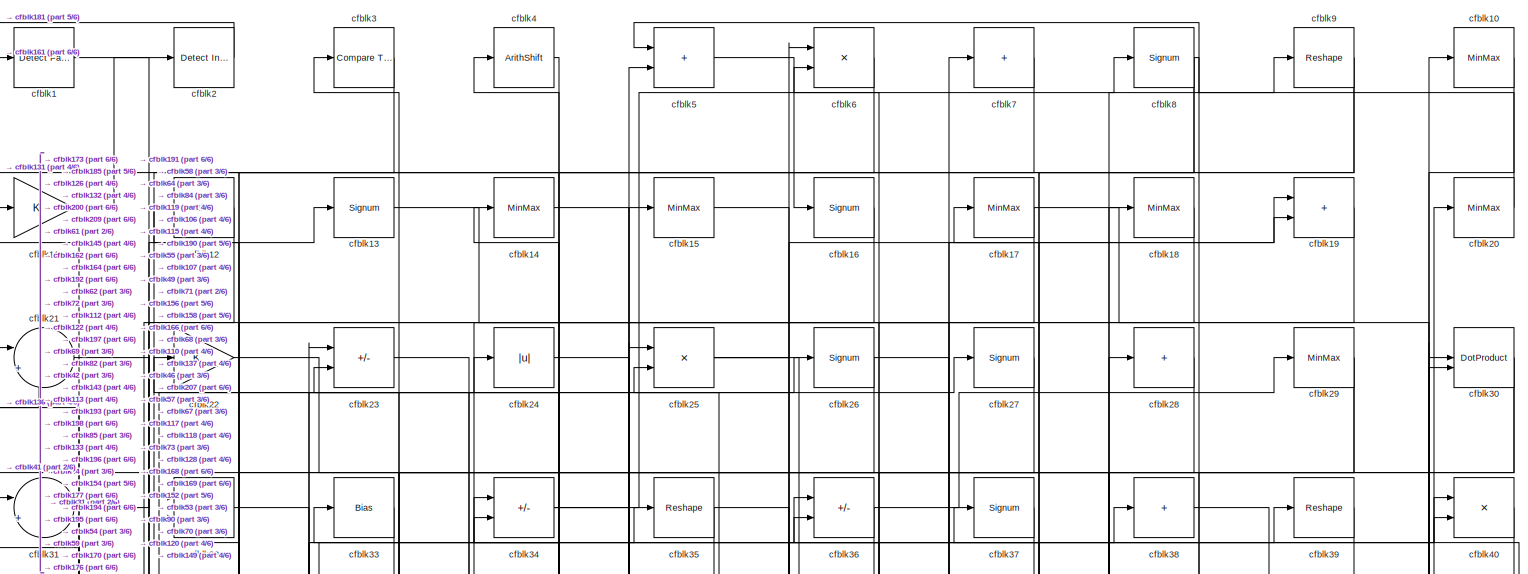
[diagram: root canvas - part 1/6, full width, top band]
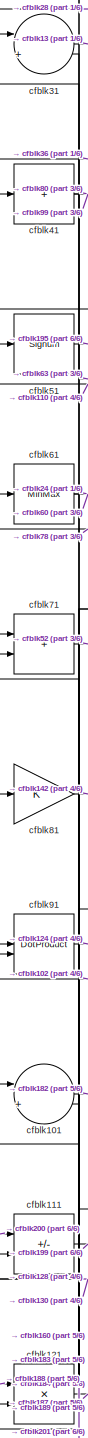
[diagram: root canvas - part 2/6, middle left region]
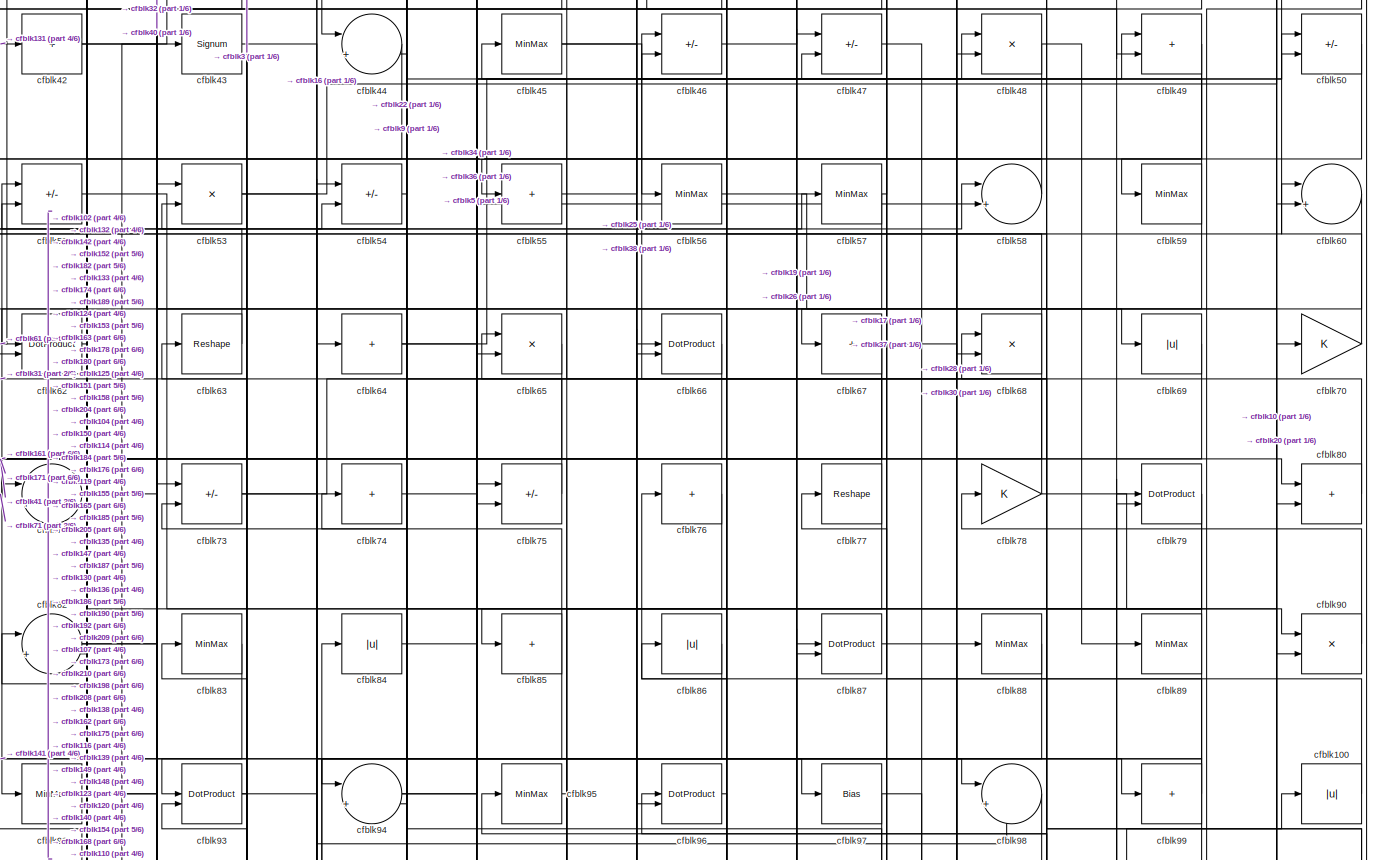
[diagram: root canvas - part 3/6, full width, middle band]
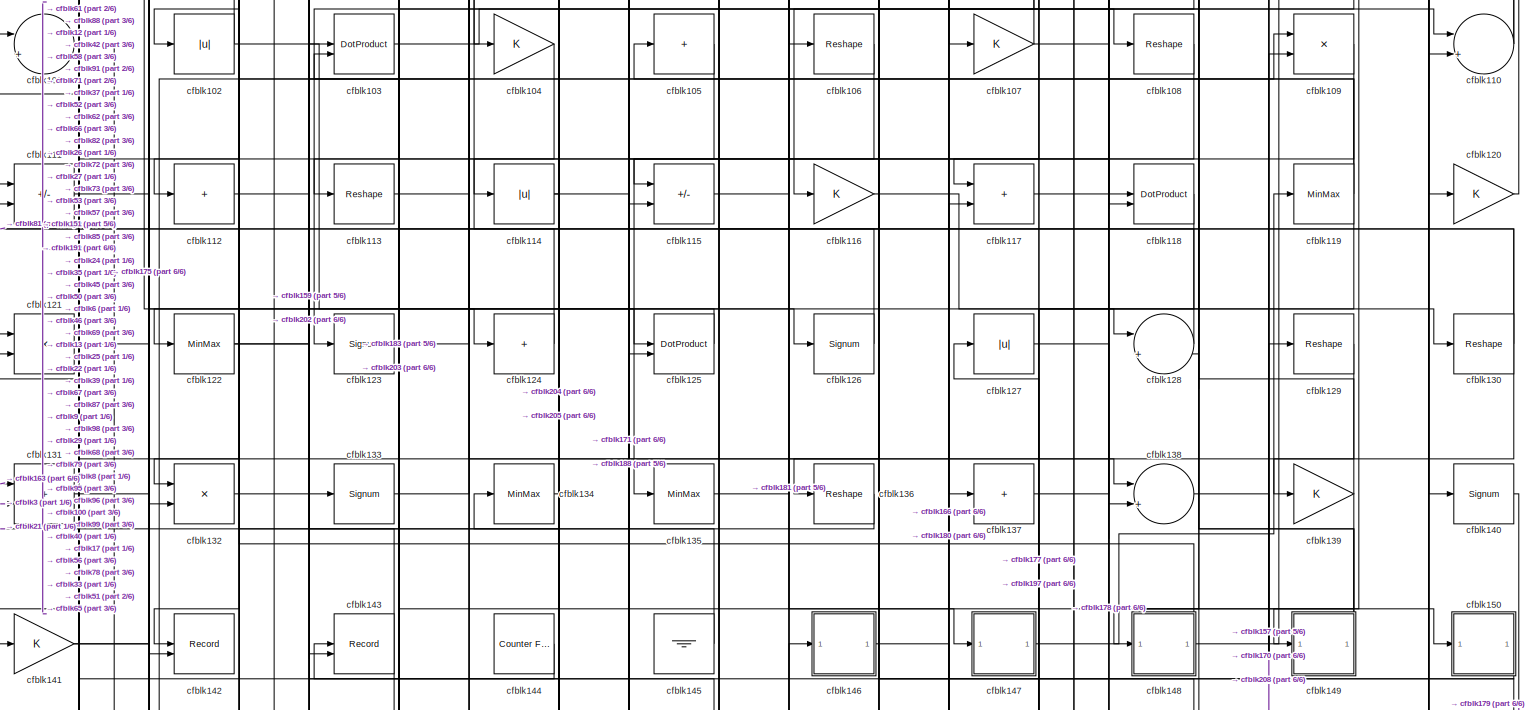
[diagram: root canvas - part 4/6, full width, middle band]
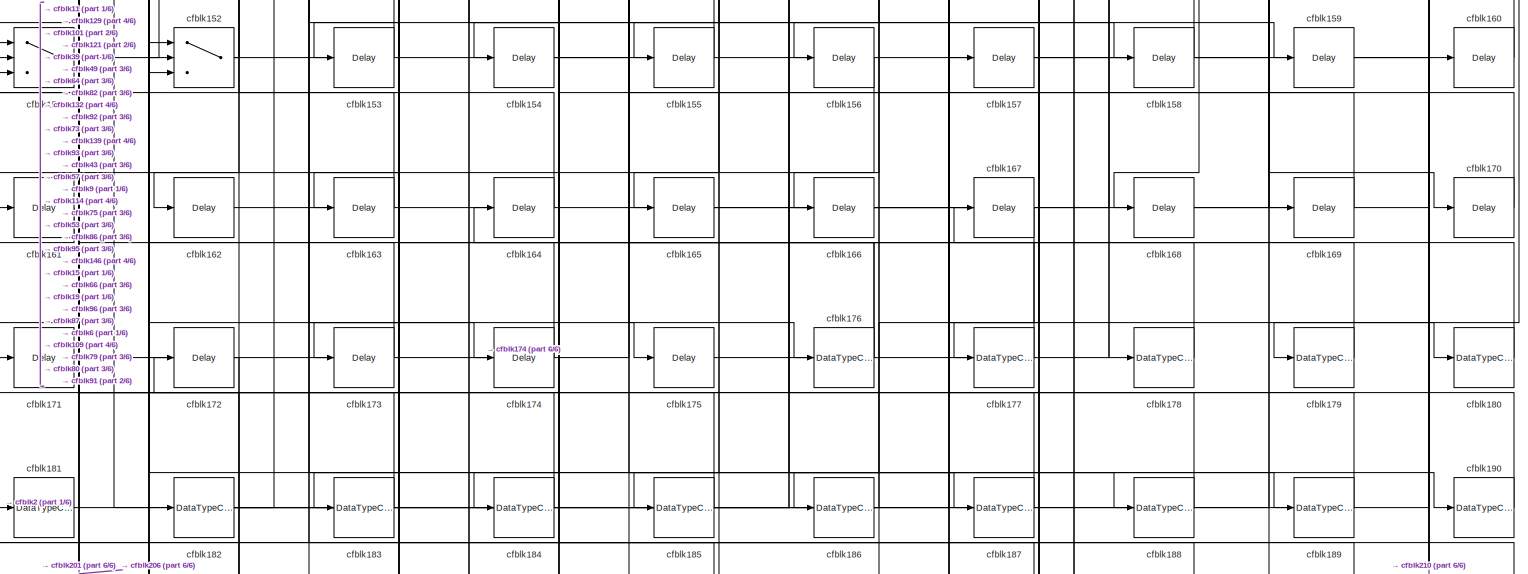
[diagram: root canvas - part 5/6, full width, bottom band]
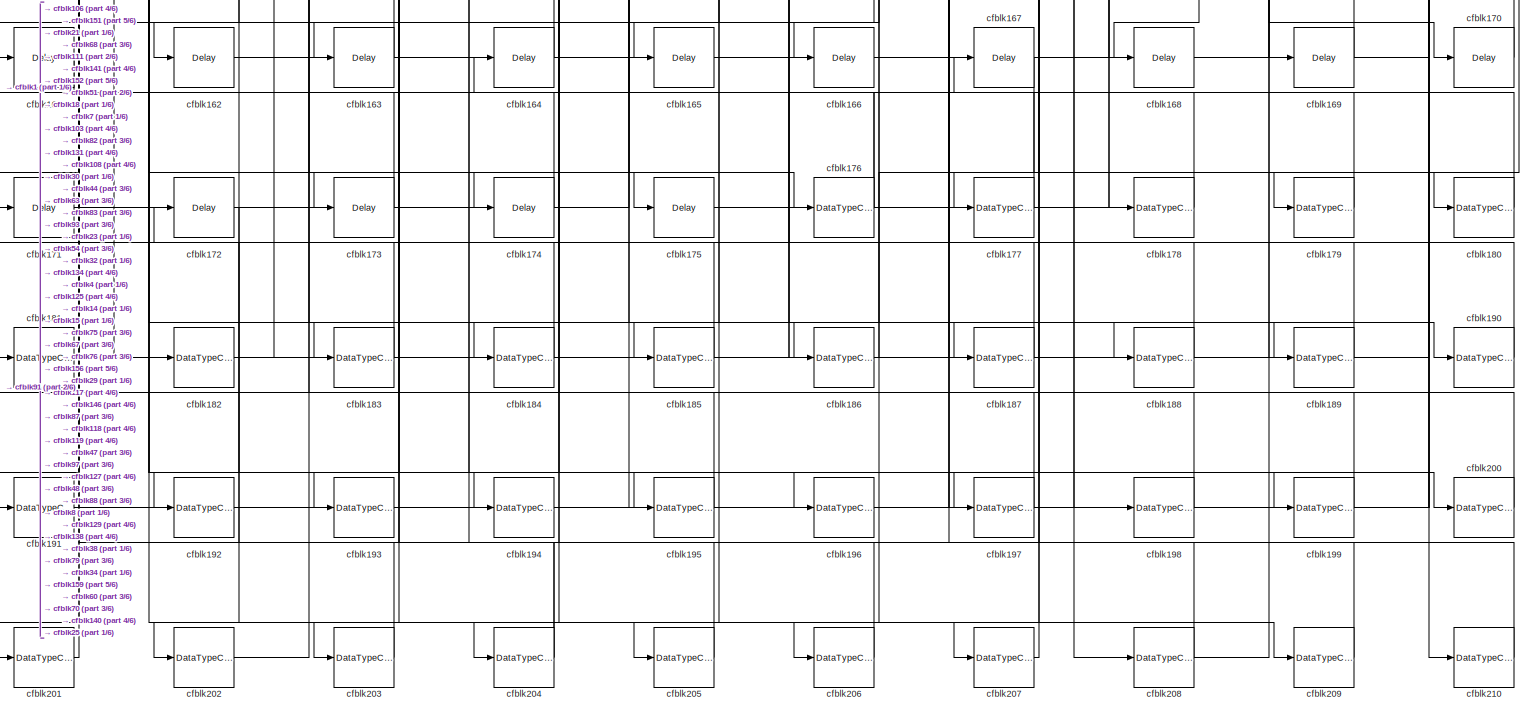
[diagram: root canvas - part 6/6, full width, bottom band]
MODEL slx_86f2b95ba22d
KIND model
CONFIG AbsTol = auto
CONFIG EnableMultiTasking = off
CONFIG FixedStep = auto
CONFIG MaxStep = auto
CONFIG MinStep = auto
CONFIG RelTol = 1e-3
CONFIG SampleTimeConstraint = Unconstrained
CONFIG SolverName = VariableStepAuto
CONFIG StartTime = 0.0
CONFIG StopTime = 10.0
BLOCK [Reference] cfblk1  REF=hdlsllib/Logic and Bit
Operations/Detect Fall
Nonpositive
  SourceBlock = hdlsllib/Logic and Bit\nOperations/Detect Fall\nNonpositive
  SourceType = Detect Fall Nonpositive
BLOCK [MinMax] cfblk10
BLOCK [Abs] cfblk100
  SaturateOnIntegerOverflow = off
BLOCK [Sum] cfblk101
  Inputs = |++
BLOCK [Abs] cfblk102
  SaturateOnIntegerOverflow = off
BLOCK [DotProduct] cfblk103
  OutDataTypeStr = Inherit: Inherit via internal rule
BLOCK [Gain] cfblk104
BLOCK [Sum] cfblk105
  IconShape = rectangular
  Inputs = +
BLOCK [Reshape] cfblk106
BLOCK [Gain] cfblk107
BLOCK [Reshape] cfblk108
BLOCK [Product] cfblk109
  Inputs = */
  RndMeth = Zero
  SaturateOnIntegerOverflow = on
BLOCK [Gain] cfblk11
BLOCK [Sum] cfblk110
  Inputs = |++
BLOCK [Sum] cfblk111
  IconShape = rectangular
  Inputs = +-
BLOCK [Sum] cfblk112
  IconShape = rectangular
  Inputs = +
BLOCK [Reshape] cfblk113
BLOCK [Abs] cfblk114
  SaturateOnIntegerOverflow = off
BLOCK [Sum] cfblk115
  IconShape = rectangular
  Inputs = +-
BLOCK [Gain] cfblk116
BLOCK [Sum] cfblk117
  IconShape = rectangular
BLOCK [DotProduct] cfblk118
  OutDataTypeStr = Inherit: Inherit via internal rule
BLOCK [MinMax] cfblk119
BLOCK [Bias] cfblk12
  Bias = 0.0
  SaturateOnIntegerOverflow = off
BLOCK [Gain] cfblk120
BLOCK [Product] cfblk121
  Inputs = */
  RndMeth = Zero
  SaturateOnIntegerOverflow = on
BLOCK [MinMax] cfblk122
BLOCK [Signum] cfblk123
BLOCK [Sum] cfblk124
  IconShape = rectangular
  Inputs = +
BLOCK [DotProduct] cfblk125
  OutDataTypeStr = Inherit: Inherit via internal rule
BLOCK [Signum] cfblk126
BLOCK [Abs] cfblk127
  SaturateOnIntegerOverflow = off
BLOCK [Sum] cfblk128
  Inputs = |++
BLOCK [Reshape] cfblk129
BLOCK [Signum] cfblk13
BLOCK [Reshape] cfblk130
BLOCK [Sum] cfblk131
  IconShape = rectangular
BLOCK [Product] cfblk132
  Inputs = */
  RndMeth = Zero
  SaturateOnIntegerOverflow = on
BLOCK [Signum] cfblk133
BLOCK [MinMax] cfblk134
BLOCK [MinMax] cfblk135
BLOCK [Reshape] cfblk136
BLOCK [Sum] cfblk137
  IconShape = rectangular
  Inputs = +
BLOCK [Sum] cfblk138
  Inputs = |++
BLOCK [Gain] cfblk139
BLOCK [MinMax] cfblk14
BLOCK [Signum] cfblk140
BLOCK [Gain] cfblk141
BLOCK [Record] cfblk142
  CompatibilityTag = XY
  FileSettingsInternal = {"entries":[{"content":{"excelSettings":{"content":{},"type":"Streamout.ExcelSettings"}},"type":"Streamout.FileSettingStorage","uuid":""}],"packageUris":["http:\/\/schema.mathworks.com\/mf0\/streamout_blocks\/R2020a"],"version":"1.0"}
  Layout = [1 1]
  SignalsInternal = {"entries":[{"content":{"signals":[{"content":{"blockPath":[],"dimensions":[1],"domain":"","lineColor":"#a2142f","plots":[1],"port":1,"signalID":5086,"signalName":"XY Graph:1"},"type":"RecordBlkView.Signal","uuid":""},{"content":{"blockPath":[],"dimensions":[1],"domain":"","lineColor":"#139fff","plots":[1],"port":2,"signalID":5089,"signalName":"XY Graph:2"},"type":"RecordBlkView.Signal","uuid":""}...<+146ch>
  VisualizationBindings = {"xyplotplugin":{"info":[{"series":[{"bindingParametersList":[{"parameter":"X-Axis","signalID":5086,"signalName":"XY Graph:1"},{"parameter":"Y-Axis","signalID":5089,"signalName":"XY Graph:2"}],"seriesID":15448}],"subplotID":1}]}}
  st = -1
BLOCK [Record] cfblk143
  CompatibilityTag = XY
  FileSettingsInternal = {"entries":[{"content":{"excelSettings":{"content":{},"type":"Streamout.ExcelSettings"}},"type":"Streamout.FileSettingStorage","uuid":""}],"packageUris":["http:\/\/schema.mathworks.com\/mf0\/streamout_blocks\/R2020a"],"version":"1.0"}
  Layout = [1 1]
  SignalsInternal = {"entries":[{"content":{"signals":[{"content":{"blockPath":[],"dimensions":[1],"domain":"","lineColor":"#a2142f","plots":[1],"port":1,"signalID":5094,"signalName":"XY Graph:1"},"type":"RecordBlkView.Signal","uuid":""},{"content":{"blockPath":[],"dimensions":[1],"domain":"","lineColor":"#139fff","plots":[1],"port":2,"signalID":5097,"signalName":"XY Graph:2"},"type":"RecordBlkView.Signal","uuid":""}...<+146ch>
  VisualizationBindings = {"xyplotplugin":{"info":[{"series":[{"bindingParametersList":[{"parameter":"X-Axis","signalID":5094,"signalName":"XY Graph:1"},{"parameter":"Y-Axis","signalID":5097,"signalName":"XY Graph:2"}],"seriesID":38158}],"subplotID":1}]}}
  st = -1
BLOCK [Reference] cfblk144  REF=hdlsllib/Sources/Counter
Free-Running
  SourceBlock = hdlsllib/Sources/Counter\nFree-Running
  SourceType = Counter Free-Running
BLOCK [Ground] cfblk145
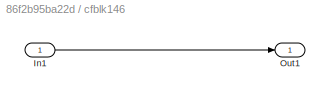
BLOCK [SubSystem] cfblk146
  LibrarySourceBlock = hdlsllib/Ports &\nSubsystems/Subsystem
BLOCK [Inport] cfblk146/In1
BLOCK [Outport] cfblk146/Out1
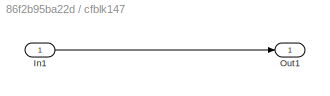
BLOCK [SubSystem] cfblk147
  LibrarySourceBlock = hdlsllib/Ports &\nSubsystems/Subsystem
BLOCK [Inport] cfblk147/In1
BLOCK [Outport] cfblk147/Out1
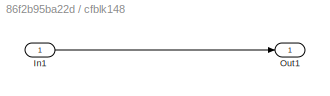
BLOCK [SubSystem] cfblk148
  LibrarySourceBlock = hdlsllib/Ports &\nSubsystems/Subsystem
BLOCK [Inport] cfblk148/In1
BLOCK [Outport] cfblk148/Out1
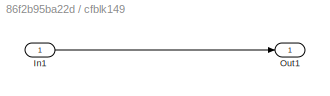
BLOCK [SubSystem] cfblk149
  LibrarySourceBlock = hdlsllib/Ports &\nSubsystems/Subsystem
BLOCK [Inport] cfblk149/In1
BLOCK [Outport] cfblk149/Out1
BLOCK [MinMax] cfblk15
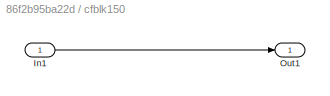
BLOCK [SubSystem] cfblk150
  LibrarySourceBlock = hdlsllib/Ports &\nSubsystems/Subsystem
BLOCK [Inport] cfblk150/In1
BLOCK [Outport] cfblk150/Out1
BLOCK [Switch] cfblk151
  InputSameDT = off
  SaturateOnIntegerOverflow = off
BLOCK [Switch] cfblk152
  InputSameDT = off
  SaturateOnIntegerOverflow = off
BLOCK [Delay] cfblk153
  InputPortMap = u0
  SampleTime = 1
BLOCK [Delay] cfblk154
  InputPortMap = u0
  SampleTime = 1
BLOCK [Delay] cfblk155
  InputPortMap = u0
  SampleTime = 1
BLOCK [Delay] cfblk156
  InputPortMap = u0
  SampleTime = 1
BLOCK [Delay] cfblk157
  InputPortMap = u0
  SampleTime = 1
BLOCK [Delay] cfblk158
  InputPortMap = u0
  SampleTime = 1
BLOCK [Delay] cfblk159
  InputPortMap = u0
  SampleTime = 1
BLOCK [Signum] cfblk16
BLOCK [Delay] cfblk160
  InputPortMap = u0
  SampleTime = 1
BLOCK [Delay] cfblk161
  InputPortMap = u0
  SampleTime = 1
BLOCK [Delay] cfblk162
  InputPortMap = u0
  SampleTime = 1
BLOCK [Delay] cfblk163
  InputPortMap = u0
  SampleTime = 1
BLOCK [Delay] cfblk164
  InputPortMap = u0
  SampleTime = 1
BLOCK [Delay] cfblk165
  InputPortMap = u0
  SampleTime = 1
BLOCK [Delay] cfblk166
  InputPortMap = u0
  SampleTime = 1
BLOCK [Delay] cfblk167
  InputPortMap = u0
  SampleTime = 1
BLOCK [Delay] cfblk168
  InputPortMap = u0
  SampleTime = 1
BLOCK [Delay] cfblk169
  InputPortMap = u0
  SampleTime = 1
BLOCK [MinMax] cfblk17
BLOCK [Delay] cfblk170
  InputPortMap = u0
  SampleTime = 1
BLOCK [Delay] cfblk171
  InputPortMap = u0
  SampleTime = 1
BLOCK [Delay] cfblk172
  InputPortMap = u0
  SampleTime = 1
BLOCK [Delay] cfblk173
  InputPortMap = u0
  SampleTime = 1
BLOCK [Delay] cfblk174
  InputPortMap = u0
  SampleTime = 1
BLOCK [Delay] cfblk175
  InputPortMap = u0
  SampleTime = 1
BLOCK [DataTypeConversion] cfblk176
  RndMeth = Floor
  SaturateOnIntegerOverflow = off
BLOCK [DataTypeConversion] cfblk177
  OutDataTypeStr = uint8
  RndMeth = Floor
  SaturateOnIntegerOverflow = off
BLOCK [DataTypeConversion] cfblk178
  OutDataTypeStr = uint8
  RndMeth = Floor
  SaturateOnIntegerOverflow = off
BLOCK [DataTypeConversion] cfblk179
  OutDataTypeStr = uint8
  RndMeth = Floor
  SaturateOnIntegerOverflow = off
BLOCK [MinMax] cfblk18
BLOCK [DataTypeConversion] cfblk180
  OutDataTypeStr = uint8
  RndMeth = Floor
  SaturateOnIntegerOverflow = off
BLOCK [DataTypeConversion] cfblk181
  OutDataTypeStr = uint8
  RndMeth = Floor
  SaturateOnIntegerOverflow = off
BLOCK [DataTypeConversion] cfblk182
  RndMeth = Floor
  SaturateOnIntegerOverflow = off
BLOCK [DataTypeConversion] cfblk183
  OutDataTypeStr = uint8
  RndMeth = Floor
  SaturateOnIntegerOverflow = off
BLOCK [DataTypeConversion] cfblk184
  OutDataTypeStr = uint8
  RndMeth = Floor
  SaturateOnIntegerOverflow = off
BLOCK [DataTypeConversion] cfblk185
  RndMeth = Floor
  SaturateOnIntegerOverflow = off
BLOCK [DataTypeConversion] cfblk186
  OutDataTypeStr = uint8
  RndMeth = Floor
  SaturateOnIntegerOverflow = off
BLOCK [DataTypeConversion] cfblk187
  OutDataTypeStr = uint8
  RndMeth = Floor
  SaturateOnIntegerOverflow = off
BLOCK [DataTypeConversion] cfblk188
  OutDataTypeStr = uint8
  RndMeth = Floor
  SaturateOnIntegerOverflow = off
BLOCK [DataTypeConversion] cfblk189
  OutDataTypeStr = uint8
  RndMeth = Floor
  SaturateOnIntegerOverflow = off
BLOCK [Sum] cfblk19
  IconShape = rectangular
BLOCK [DataTypeConversion] cfblk190
  OutDataTypeStr = uint8
  RndMeth = Floor
  SaturateOnIntegerOverflow = off
BLOCK [DataTypeConversion] cfblk191
  OutDataTypeStr = uint8
  RndMeth = Floor
  SaturateOnIntegerOverflow = off
BLOCK [DataTypeConversion] cfblk192
  RndMeth = Floor
  SaturateOnIntegerOverflow = off
BLOCK [DataTypeConversion] cfblk193
  OutDataTypeStr = uint8
  RndMeth = Floor
  SaturateOnIntegerOverflow = off
BLOCK [DataTypeConversion] cfblk194
  OutDataTypeStr = uint8
  RndMeth = Floor
  SaturateOnIntegerOverflow = off
BLOCK [DataTypeConversion] cfblk195
  OutDataTypeStr = uint8
  RndMeth = Floor
  SaturateOnIntegerOverflow = off
BLOCK [DataTypeConversion] cfblk196
  OutDataTypeStr = uint8
  RndMeth = Floor
  SaturateOnIntegerOverflow = off
BLOCK [DataTypeConversion] cfblk197
  OutDataTypeStr = uint8
  RndMeth = Floor
  SaturateOnIntegerOverflow = off
BLOCK [DataTypeConversion] cfblk198
  OutDataTypeStr = uint8
  RndMeth = Floor
  SaturateOnIntegerOverflow = off
BLOCK [DataTypeConversion] cfblk199
  OutDataTypeStr = uint8
  RndMeth = Floor
  SaturateOnIntegerOverflow = off
BLOCK [Reference] cfblk2  REF=simulink/Logic and Bit
Operations/Detect
Increase
  LibrarySourceBlock = hdlsllib/Logic and Bit\nOperations/Detect\nIncrease
  SourceBlock = simulink/Logic and Bit\nOperations/Detect\nIncrease
  SourceType = Detect Increase
BLOCK [MinMax] cfblk20
BLOCK [DataTypeConversion] cfblk200
  OutDataTypeStr = uint8
  RndMeth = Floor
  SaturateOnIntegerOverflow = off
BLOCK [DataTypeConversion] cfblk201
  OutDataTypeStr = uint8
  RndMeth = Floor
  SaturateOnIntegerOverflow = off
BLOCK [DataTypeConversion] cfblk202
  OutDataTypeStr = uint8
  RndMeth = Floor
  SaturateOnIntegerOverflow = off
BLOCK [DataTypeConversion] cfblk203
  OutDataTypeStr = uint8
  RndMeth = Floor
  SaturateOnIntegerOverflow = off
BLOCK [DataTypeConversion] cfblk204
  RndMeth = Floor
  SaturateOnIntegerOverflow = off
BLOCK [DataTypeConversion] cfblk205
  OutDataTypeStr = uint8
  RndMeth = Floor
  SaturateOnIntegerOverflow = off
BLOCK [DataTypeConversion] cfblk206
  OutDataTypeStr = uint8
  RndMeth = Floor
  SaturateOnIntegerOverflow = off
BLOCK [DataTypeConversion] cfblk207
  OutDataTypeStr = uint8
  RndMeth = Floor
  SaturateOnIntegerOverflow = off
BLOCK [DataTypeConversion] cfblk208
  RndMeth = Floor
  SaturateOnIntegerOverflow = off
BLOCK [DataTypeConversion] cfblk209
  OutDataTypeStr = uint8
  RndMeth = Floor
  SaturateOnIntegerOverflow = off
BLOCK [Sum] cfblk21
  Inputs = |++
BLOCK [DataTypeConversion] cfblk210
  OutDataTypeStr = uint8
  RndMeth = Floor
  SaturateOnIntegerOverflow = off
BLOCK [Gain] cfblk22
BLOCK [Sum] cfblk23
  IconShape = rectangular
  Inputs = +-
BLOCK [Abs] cfblk24
  SaturateOnIntegerOverflow = off
BLOCK [Product] cfblk25
  Inputs = */
  RndMeth = Zero
  SaturateOnIntegerOverflow = on
BLOCK [Signum] cfblk26
BLOCK [Signum] cfblk27
BLOCK [Sum] cfblk28
  IconShape = rectangular
  Inputs = +
BLOCK [MinMax] cfblk29
BLOCK [Reference] cfblk3  REF=hdlsllib/Logic and Bit
Operations/Compare
To Constant
  SourceBlock = hdlsllib/Logic and Bit\nOperations/Compare\nTo Constant
  SourceType = Compare To Constant
BLOCK [DotProduct] cfblk30
  OutDataTypeStr = Inherit: Inherit via internal rule
BLOCK [Sum] cfblk31
  Inputs = |++
BLOCK [Product] cfblk32
  Inputs = */
  RndMeth = Zero
  SaturateOnIntegerOverflow = on
BLOCK [Bias] cfblk33
  Bias = 0.0
  SaturateOnIntegerOverflow = off
BLOCK [Sum] cfblk34
  IconShape = rectangular
  Inputs = +-
BLOCK [Reshape] cfblk35
BLOCK [Sum] cfblk36
  IconShape = rectangular
  Inputs = +-
BLOCK [Signum] cfblk37
BLOCK [Sum] cfblk38
  IconShape = rectangular
  Inputs = +
BLOCK [Reshape] cfblk39
BLOCK [ArithShift] cfblk4
  BitShiftNumber = 8
  InputPortMap = u0
BLOCK [Product] cfblk40
  Inputs = */
  RndMeth = Zero
  SaturateOnIntegerOverflow = on
BLOCK [Sum] cfblk41
  IconShape = rectangular
  Inputs = +
BLOCK [Sum] cfblk42
  IconShape = rectangular
  Inputs = +
BLOCK [Signum] cfblk43
BLOCK [Sum] cfblk44
  Inputs = |++
BLOCK [MinMax] cfblk45
BLOCK [Sum] cfblk46
  IconShape = rectangular
  Inputs = +-
BLOCK [Sum] cfblk47
  IconShape = rectangular
  Inputs = +-
BLOCK [Product] cfblk48
  Inputs = */
  RndMeth = Zero
  SaturateOnIntegerOverflow = on
BLOCK [Sum] cfblk49
  IconShape = rectangular
BLOCK [Sum] cfblk5
  IconShape = rectangular
BLOCK [Sum] cfblk50
  IconShape = rectangular
  Inputs = +-
BLOCK [Signum] cfblk51
BLOCK [Sum] cfblk52
  IconShape = rectangular
  Inputs = +-
BLOCK [Product] cfblk53
  Inputs = */
  RndMeth = Zero
  SaturateOnIntegerOverflow = on
BLOCK [Sum] cfblk54
  IconShape = rectangular
  Inputs = +-
BLOCK [Sum] cfblk55
  IconShape = rectangular
  Inputs = +
BLOCK [MinMax] cfblk56
BLOCK [MinMax] cfblk57
BLOCK [Sum] cfblk58
  Inputs = |++
BLOCK [MinMax] cfblk59
BLOCK [Product] cfblk6
  Inputs = */
  RndMeth = Zero
  SaturateOnIntegerOverflow = on
BLOCK [Sum] cfblk60
  Inputs = |++
BLOCK [MinMax] cfblk61
BLOCK [DotProduct] cfblk62
  OutDataTypeStr = Inherit: Inherit via internal rule
BLOCK [Reshape] cfblk63
BLOCK [Sum] cfblk64
  IconShape = rectangular
  Inputs = +
BLOCK [Product] cfblk65
  Inputs = */
  RndMeth = Zero
  SaturateOnIntegerOverflow = on
BLOCK [DotProduct] cfblk66
  OutDataTypeStr = Inherit: Inherit via internal rule
BLOCK [Sum] cfblk67
  IconShape = rectangular
  Inputs = +
BLOCK [Product] cfblk68
  Inputs = */
  RndMeth = Zero
  SaturateOnIntegerOverflow = on
BLOCK [Abs] cfblk69
  SaturateOnIntegerOverflow = off
BLOCK [Sum] cfblk7
  IconShape = rectangular
  Inputs = +
BLOCK [Gain] cfblk70
BLOCK [Sum] cfblk71
  IconShape = rectangular
BLOCK [Sum] cfblk72
  Inputs = |++
BLOCK [Sum] cfblk73
  IconShape = rectangular
  Inputs = +-
BLOCK [Sum] cfblk74
  IconShape = rectangular
  Inputs = +
BLOCK [Sum] cfblk75
  IconShape = rectangular
  Inputs = +-
BLOCK [Sum] cfblk76
  IconShape = rectangular
  Inputs = +
BLOCK [Reshape] cfblk77
BLOCK [Gain] cfblk78
BLOCK [DotProduct] cfblk79
  OutDataTypeStr = Inherit: Inherit via internal rule
BLOCK [Signum] cfblk8
BLOCK [Sum] cfblk80
  IconShape = rectangular
BLOCK [Gain] cfblk81
BLOCK [Sum] cfblk82
  Inputs = |++
BLOCK [MinMax] cfblk83
BLOCK [Abs] cfblk84
  SaturateOnIntegerOverflow = off
BLOCK [Sum] cfblk85
  IconShape = rectangular
  Inputs = +
BLOCK [Abs] cfblk86
  SaturateOnIntegerOverflow = off
BLOCK [DotProduct] cfblk87
  OutDataTypeStr = Inherit: Inherit via internal rule
BLOCK [MinMax] cfblk88
BLOCK [MinMax] cfblk89
BLOCK [Reshape] cfblk9
BLOCK [Product] cfblk90
  Inputs = */
  RndMeth = Zero
  SaturateOnIntegerOverflow = on
BLOCK [DotProduct] cfblk91
  OutDataTypeStr = Inherit: Inherit via internal rule
BLOCK [MinMax] cfblk92
BLOCK [DotProduct] cfblk93
  OutDataTypeStr = Inherit: Inherit via internal rule
BLOCK [Sum] cfblk94
  Inputs = |++
BLOCK [MinMax] cfblk95
BLOCK [DotProduct] cfblk96
  OutDataTypeStr = Inherit: Inherit via internal rule
BLOCK [Bias] cfblk97
  Bias = 0.0
  SaturateOnIntegerOverflow = off
BLOCK [Sum] cfblk98
  Inputs = |++
BLOCK [Sum] cfblk99
  IconShape = rectangular
  Inputs = +
LINE cfblk100:1 -> cfblk76:1
LINE cfblk101:1 -> cfblk182:1
NET cfblk102:1 -> cfblk130:1, cfblk71:1
LINE cfblk103:1 -> cfblk108:1
LINE cfblk104:1 -> cfblk114:1
LINE cfblk105:1 -> cfblk135:1
LINE cfblk106:1 -> cfblk191:1
NET cfblk107:1 -> cfblk39:1, cfblk53:2
LINE cfblk108:1 -> cfblk203:1
LINE cfblk109:1 -> cfblk115:1
LINE cfblk10:1 -> cfblk90:2
NET cfblk110:1 -> cfblk51:1, cfblk65:1
LINE cfblk111:1 -> cfblk199:1
LINE cfblk112:1 -> cfblk26:1
LINE cfblk113:1 -> cfblk138:1
NET cfblk114:1 -> cfblk188:1, cfblk74:1
LINE cfblk115:1 -> cfblk6:1
LINE cfblk116:1 -> cfblk128:1
LINE cfblk117:1 -> cfblk29:1
LINE cfblk118:1 -> cfblk177:1
NET cfblk119:1 -> cfblk197:1, cfblk25:2, cfblk82:1
LINE cfblk11:1 -> cfblk2:1
LINE cfblk120:1 -> cfblk33:1
LINE cfblk121:1 -> cfblk187:1
NET cfblk122:1 -> cfblk109:1, cfblk35:1
LINE cfblk123:1 -> cfblk57:1
LINE cfblk124:1 -> cfblk73:2
LINE cfblk125:1 -> cfblk122:1
LINE cfblk126:1 -> cfblk105:1
LINE cfblk127:1 -> cfblk178:1
LINE cfblk128:1 -> cfblk81:1
LINE cfblk129:1 -> cfblk151:1
LINE cfblk12:1 -> cfblk126:1
NET cfblk130:1 -> cfblk139:1, cfblk46:2, cfblk61:1
LINE cfblk131:1 -> cfblk42:1
LINE cfblk132:1 -> cfblk159:1
LINE cfblk133:1 -> cfblk27:1
LINE cfblk134:1 -> cfblk204:1
LINE cfblk135:1 -> cfblk50:2
LINE cfblk136:1 -> cfblk21:2
LINE cfblk137:1 -> cfblk9:1
LINE cfblk138:1 -> cfblk170:1
NET cfblk139:1 -> cfblk183:1, cfblk68:1
LINE cfblk13:1 -> cfblk137:1
LINE cfblk140:1 -> cfblk179:1
NET cfblk141:1 -> cfblk175:1, cfblk58:1
LINE cfblk144:1 -> cfblk143:1
LINE cfblk145:1 -> cfblk12:1
LINE cfblk146/In1:1 -> cfblk146/Out1:1
LINE cfblk146:1 -> cfblk180:1
LINE cfblk147/In1:1 -> cfblk147/Out1:1
LINE cfblk147:1 -> cfblk119:1
LINE cfblk148/In1:1 -> cfblk148/Out1:1
NET cfblk148:1 -> cfblk100:1, cfblk52:2
LINE cfblk149/In1:1 -> cfblk149/Out1:1
NET cfblk149:1 -> cfblk95:1, cfblk96:1
LINE cfblk14:1 -> cfblk176:1
LINE cfblk150/In1:1 -> cfblk150/Out1:1
LINE cfblk150:1 -> cfblk84:1
LINE cfblk151:1 -> cfblk64:1
NET cfblk152:1 -> cfblk75:2, cfblk82:2
LINE cfblk153:1 -> cfblk73:1
LINE cfblk154:1 -> cfblk80:2
LINE cfblk155:1 -> cfblk53:1
LINE cfblk156:1 -> cfblk201:1
LINE cfblk157:1 -> cfblk109:2
LINE cfblk158:1 -> cfblk6:2
LINE cfblk159:1 -> cfblk210:1
LINE cfblk15:1 -> cfblk190:1
LINE cfblk160:1 -> cfblk91:2
LINE cfblk161:1 -> cfblk1:1
LINE cfblk162:1 -> cfblk48:2
LINE cfblk163:1 -> cfblk131:1
LINE cfblk164:1 -> cfblk32:2
LINE cfblk165:1 -> cfblk79:2
LINE cfblk166:1 -> cfblk117:2
LINE cfblk167:1 -> cfblk206:1
LINE cfblk168:1 -> cfblk60:2
LINE cfblk169:1 -> cfblk34:2
LINE cfblk16:1 -> cfblk44:1
LINE cfblk170:1 -> cfblk25:1
LINE cfblk171:1 -> cfblk125:2
LINE cfblk172:1 -> cfblk202:1
LINE cfblk173:1 -> cfblk21:1
LINE cfblk174:1 -> cfblk152:1
LINE cfblk175:1 -> cfblk88:1
NET cfblk176:1 -> cfblk164:1, cfblk75:1
LINE cfblk177:1 -> cfblk14:1
LINE cfblk178:1 -> cfblk83:1
LINE cfblk179:1 -> cfblk127:1
NET cfblk17:1 -> cfblk110:2, cfblk132:2
LINE cfblk180:1 -> cfblk93:2
LINE cfblk181:1 -> cfblk146:1
NET cfblk182:1 -> cfblk157:1, cfblk160:1, cfblk43:1, cfblk66:2
LINE cfblk183:1 -> cfblk101:1
LINE cfblk184:1 -> cfblk101:2
NET cfblk185:1 -> cfblk11:1, cfblk79:1
LINE cfblk186:1 -> cfblk86:1
LINE cfblk187:1 -> cfblk66:1
LINE cfblk188:1 -> cfblk121:1
LINE cfblk189:1 -> cfblk121:2
LINE cfblk18:1 -> cfblk162:1
LINE cfblk190:1 -> cfblk87:1
LINE cfblk191:1 -> cfblk15:1
NET cfblk192:1 -> cfblk70:1, cfblk87:2
LINE cfblk193:1 -> cfblk7:1
LINE cfblk194:1 -> cfblk30:2
LINE cfblk195:1 -> cfblk4:1
LINE cfblk196:1 -> cfblk30:1
LINE cfblk197:1 -> cfblk23:1
LINE cfblk198:1 -> cfblk23:2
LINE cfblk199:1 -> cfblk91:1
LINE cfblk19:1 -> cfblk156:1
LINE cfblk1:1 -> cfblk200:1
LINE cfblk200:1 -> cfblk111:1
LINE cfblk201:1 -> cfblk111:2
LINE cfblk202:1 -> cfblk103:1
LINE cfblk203:1 -> cfblk172:1
NET cfblk204:1 -> cfblk103:2, cfblk54:1
LINE cfblk205:1 -> cfblk134:1
LINE cfblk206:1 -> cfblk151:3
LINE cfblk207:1 -> cfblk167:1
NET cfblk208:1 -> cfblk129:1, cfblk63:1
LINE cfblk209:1 -> cfblk47:1
LINE cfblk20:1 -> cfblk5:1
LINE cfblk210:1 -> cfblk47:2
LINE cfblk21:1 -> cfblk209:1
LINE cfblk22:1 -> cfblk118:1
LINE cfblk23:1 -> cfblk196:1
LINE cfblk24:1 -> cfblk118:2
NET cfblk25:1 -> cfblk107:1, cfblk19:2, cfblk49:2
NET cfblk26:1 -> cfblk110:1, cfblk72:2
LINE cfblk27:1 -> cfblk113:1
LINE cfblk28:1 -> cfblk41:1
NET cfblk29:1 -> cfblk128:2, cfblk166:1
LINE cfblk2:1 -> cfblk181:1
NET cfblk30:1 -> cfblk193:1, cfblk68:2
LINE cfblk31:1 -> cfblk13:1
LINE cfblk32:1 -> cfblk69:1
LINE cfblk33:1 -> cfblk143:2
NET cfblk34:1 -> cfblk58:2, cfblk8:1
NET cfblk35:1 -> cfblk106:1, cfblk115:2
NET cfblk36:1 -> cfblk18:1, cfblk71:2
LINE cfblk37:1 -> cfblk112:1
LINE cfblk38:1 -> cfblk169:1
LINE cfblk39:1 -> cfblk152:2
LINE cfblk3:1 -> cfblk131:2
LINE cfblk40:1 -> cfblk149:1
NET cfblk41:1 -> cfblk80:1, cfblk99:1
NET cfblk42:1 -> cfblk40:1, cfblk65:2
LINE cfblk43:1 -> cfblk158:1
LINE cfblk44:1 -> cfblk163:1
NET cfblk45:1 -> cfblk147:1, cfblk56:1
LINE cfblk46:1 -> cfblk19:1
LINE cfblk47:1 -> cfblk208:1
NET cfblk48:1 -> cfblk72:1, cfblk89:1
NET cfblk49:1 -> cfblk151:2, cfblk152:3
LINE cfblk4:1 -> cfblk194:1
LINE cfblk50:1 -> cfblk59:1
LINE cfblk51:1 -> cfblk195:1
LINE cfblk52:1 -> cfblk90:1
NET cfblk53:1 -> cfblk10:1, cfblk125:1
LINE cfblk54:1 -> cfblk34:1
LINE cfblk55:1 -> cfblk38:1
LINE cfblk56:1 -> cfblk140:1
NET cfblk57:1 -> cfblk17:1, cfblk184:1
LINE cfblk58:1 -> cfblk55:1
NET cfblk59:1 -> cfblk22:1, cfblk62:2
LINE cfblk5:1 -> cfblk16:1
LINE cfblk60:1 -> cfblk67:1
NET cfblk61:1 -> cfblk24:1, cfblk60:1
LINE cfblk62:1 -> cfblk142:1
LINE cfblk63:1 -> cfblk31:1
NET cfblk64:1 -> cfblk36:2, cfblk48:1
LINE cfblk65:1 -> cfblk92:1
LINE cfblk66:1 -> cfblk132:1
NET cfblk67:1 -> cfblk138:2, cfblk165:1, cfblk171:1, cfblk37:1
NET cfblk68:1 -> cfblk161:1, cfblk36:1
LINE cfblk69:1 -> cfblk136:1
LINE cfblk6:1 -> cfblk32:1
LINE cfblk70:1 -> cfblk20:1
LINE cfblk71:1 -> cfblk52:1
LINE cfblk72:1 -> cfblk133:1
NET cfblk73:1 -> cfblk28:1, cfblk98:1
LINE cfblk74:1 -> cfblk97:1
LINE cfblk75:1 -> cfblk44:2
LINE cfblk76:1 -> cfblk205:1
NET cfblk77:1 -> cfblk46:1, cfblk94:2
NET cfblk78:1 -> cfblk120:1, cfblk31:2
NET cfblk79:1 -> cfblk102:1, cfblk148:1
LINE cfblk7:1 -> cfblk192:1
LINE cfblk80:1 -> cfblk45:1
LINE cfblk81:1 -> cfblk142:2
NET cfblk82:1 -> cfblk174:1, cfblk40:2
LINE cfblk83:1 -> cfblk93:1
LINE cfblk84:1 -> cfblk5:2
NET cfblk85:1 -> cfblk104:1, cfblk3:1
LINE cfblk86:1 -> cfblk185:1
LINE cfblk87:1 -> cfblk150:1
LINE cfblk88:1 -> cfblk141:1
NET cfblk89:1 -> cfblk85:1, cfblk96:2
NET cfblk8:1 -> cfblk117:1, cfblk168:1, cfblk207:1
LINE cfblk90:1 -> cfblk78:1
LINE cfblk91:1 -> cfblk124:1
NET cfblk92:1 -> cfblk189:1, cfblk54:2
NET cfblk93:1 -> cfblk153:1, cfblk98:2
NET cfblk94:1 -> cfblk49:1, cfblk50:1
LINE cfblk95:1 -> cfblk155:1
LINE cfblk96:1 -> cfblk186:1
NET cfblk97:1 -> cfblk173:1, cfblk198:1
LINE cfblk98:1 -> cfblk116:1
NET cfblk99:1 -> cfblk123:1, cfblk77:1, cfblk94:1
NET cfblk9:1 -> cfblk154:1, cfblk62:1
note: NET lines group one-source signal fan-out (src -> all destinations, sorted); 1:1 wires keep LINE
